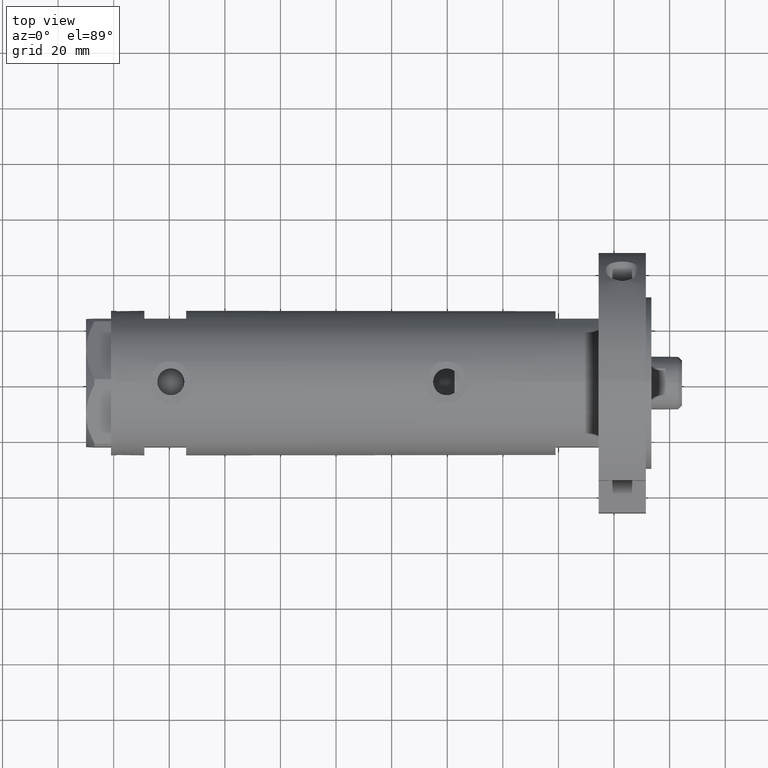
[diagram: clean part render]
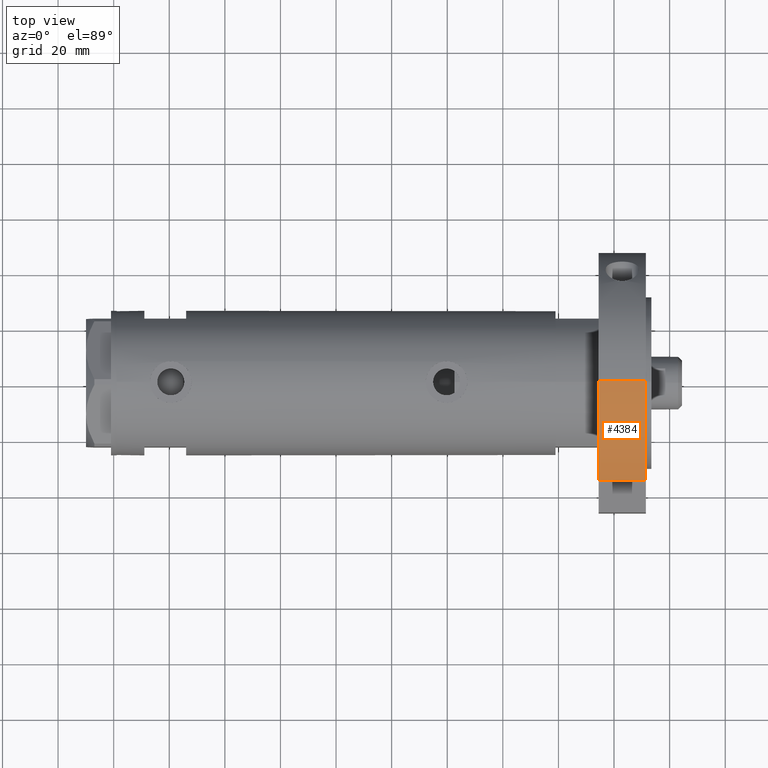
[diagram: same view with one face highlighted and labeled with its STEP entity id]
A machine part, top view. The second image highlights one B-rep face of the part: STEP entity #4384.
In plain terms, the highlighted cylindrical surface (partial cylindrical patch) has radius 47 mm, axis along (-1, -0, 0).
Its self-contained STEP definition (entity closure, byte-faithful):
#502 = ORIENTED_EDGE ( 'NONE', *, *, #3674, .F. ) ;
#512 = CIRCLE ( 'NONE', #6034, 46.99999999999999289 ) ;
#1166 = VECTOR ( 'NONE', #2166, 1000.000000000000000 ) ;
#1172 = LINE ( 'NONE', #4235, #7168 ) ;
#1336 = CARTESIAN_POINT ( 'NONE',  ( 30.83217135699462830, 35.47361286101148892, 17.00000000000000000 ) ) ;
#1555 = DIRECTION ( 'NONE',  ( 1.000000000000000000, 0.000000000000000000, 0.000000000000000000 ) ) ;
#2166 = DIRECTION ( 'NONE',  ( -0.000000000000000000, -0.000000000000000000, 1.000000000000000000 ) ) ;
#2535 = VERTEX_POINT ( 'NONE', #7927 ) ;
#2549 = DIRECTION ( 'NONE',  ( 1.000000000000000000, 0.000000000000000000, 0.000000000000000000 ) ) ;
#2588 = EDGE_CURVE ( 'NONE', #2535, #6386, #1172, .T. ) ;
#2725 = EDGE_CURVE ( 'NONE', #6386, #4713, #3086, .T. ) ;
#3086 = CIRCLE ( 'NONE', #7555, 46.99999999999999289 ) ;
#3674 = EDGE_CURVE ( 'NONE', #2535, #3871, #512, .T. ) ;
#3871 = VERTEX_POINT ( 'NONE', #1336 ) ;
#4129 = AXIS2_PLACEMENT_3D ( 'NONE', #4492, #6905, #6262 ) ;
#4186 = CARTESIAN_POINT ( 'NONE',  ( 30.83217135699462830, 35.47361286101148892, 0.000000000000000000 ) ) ;
#4235 = CARTESIAN_POINT ( 'NONE',  ( 46.99999999999999289, 5.755839955992559063E-15, 17.00000000000000000 ) ) ;
#4384 = ADVANCED_FACE ( 'NONE', ( #6229 ), #7512, .T. ) ;
#4492 = CARTESIAN_POINT ( 'NONE',  ( 0.000000000000000000, 0.000000000000000000, 17.00000000000000000 ) ) ;
#4606 = EDGE_CURVE ( 'NONE', #4713, #3871, #6427, .T. ) ;
#4713 = VERTEX_POINT ( 'NONE', #4186 ) ;
#4798 = ORIENTED_EDGE ( 'NONE', *, *, #2725, .T. ) ;
#5193 = CARTESIAN_POINT ( 'NONE',  ( 46.99999999999999289, 5.755839955992559063E-15, 0.000000000000000000 ) ) ;
#5400 = CARTESIAN_POINT ( 'NONE',  ( 0.000000000000000000, 0.000000000000000000, 17.00000000000000000 ) ) ;
#5554 = ORIENTED_EDGE ( 'NONE', *, *, #4606, .T. ) ;
#5691 = ORIENTED_EDGE ( 'NONE', *, *, #2588, .T. ) ;
#5823 = CARTESIAN_POINT ( 'NONE',  ( 30.83217135699462830, 35.47361286101148892, 0.000000000000000000 ) ) ;
#6034 = AXIS2_PLACEMENT_3D ( 'NONE', #5400, #7014, #1555 ) ;
#6205 = EDGE_LOOP ( 'NONE', ( #502, #5691, #4798, #5554 ) ) ;
#6229 = FACE_OUTER_BOUND ( 'NONE', #6205, .T. ) ;
#6262 = DIRECTION ( 'NONE',  ( -1.000000000000000000, 0.000000000000000000, 0.000000000000000000 ) ) ;
#6269 = CARTESIAN_POINT ( 'NONE',  ( 0.000000000000000000, 0.000000000000000000, 0.000000000000000000 ) ) ;
#6386 = VERTEX_POINT ( 'NONE', #5193 ) ;
#6427 = LINE ( 'NONE', #5823, #1166 ) ;
#6678 = DIRECTION ( 'NONE',  ( -0.000000000000000000, -0.000000000000000000, -1.000000000000000000 ) ) ;
#6877 = DIRECTION ( 'NONE',  ( 0.000000000000000000, 0.000000000000000000, 1.000000000000000000 ) ) ;
#6905 = DIRECTION ( 'NONE',  ( -0.000000000000000000, -0.000000000000000000, -1.000000000000000000 ) ) ;
#7014 = DIRECTION ( 'NONE',  ( 0.000000000000000000, 0.000000000000000000, 1.000000000000000000 ) ) ;
#7168 = VECTOR ( 'NONE', #6678, 1000.000000000000000 ) ;
#7512 = CYLINDRICAL_SURFACE ( 'NONE', #4129, 46.99999999999999289 ) ;
#7555 = AXIS2_PLACEMENT_3D ( 'NONE', #6269, #6877, #2549 ) ;
#7927 = CARTESIAN_POINT ( 'NONE',  ( 46.99999999999999289, 5.755839955992559063E-15, 17.00000000000000000 ) ) ;